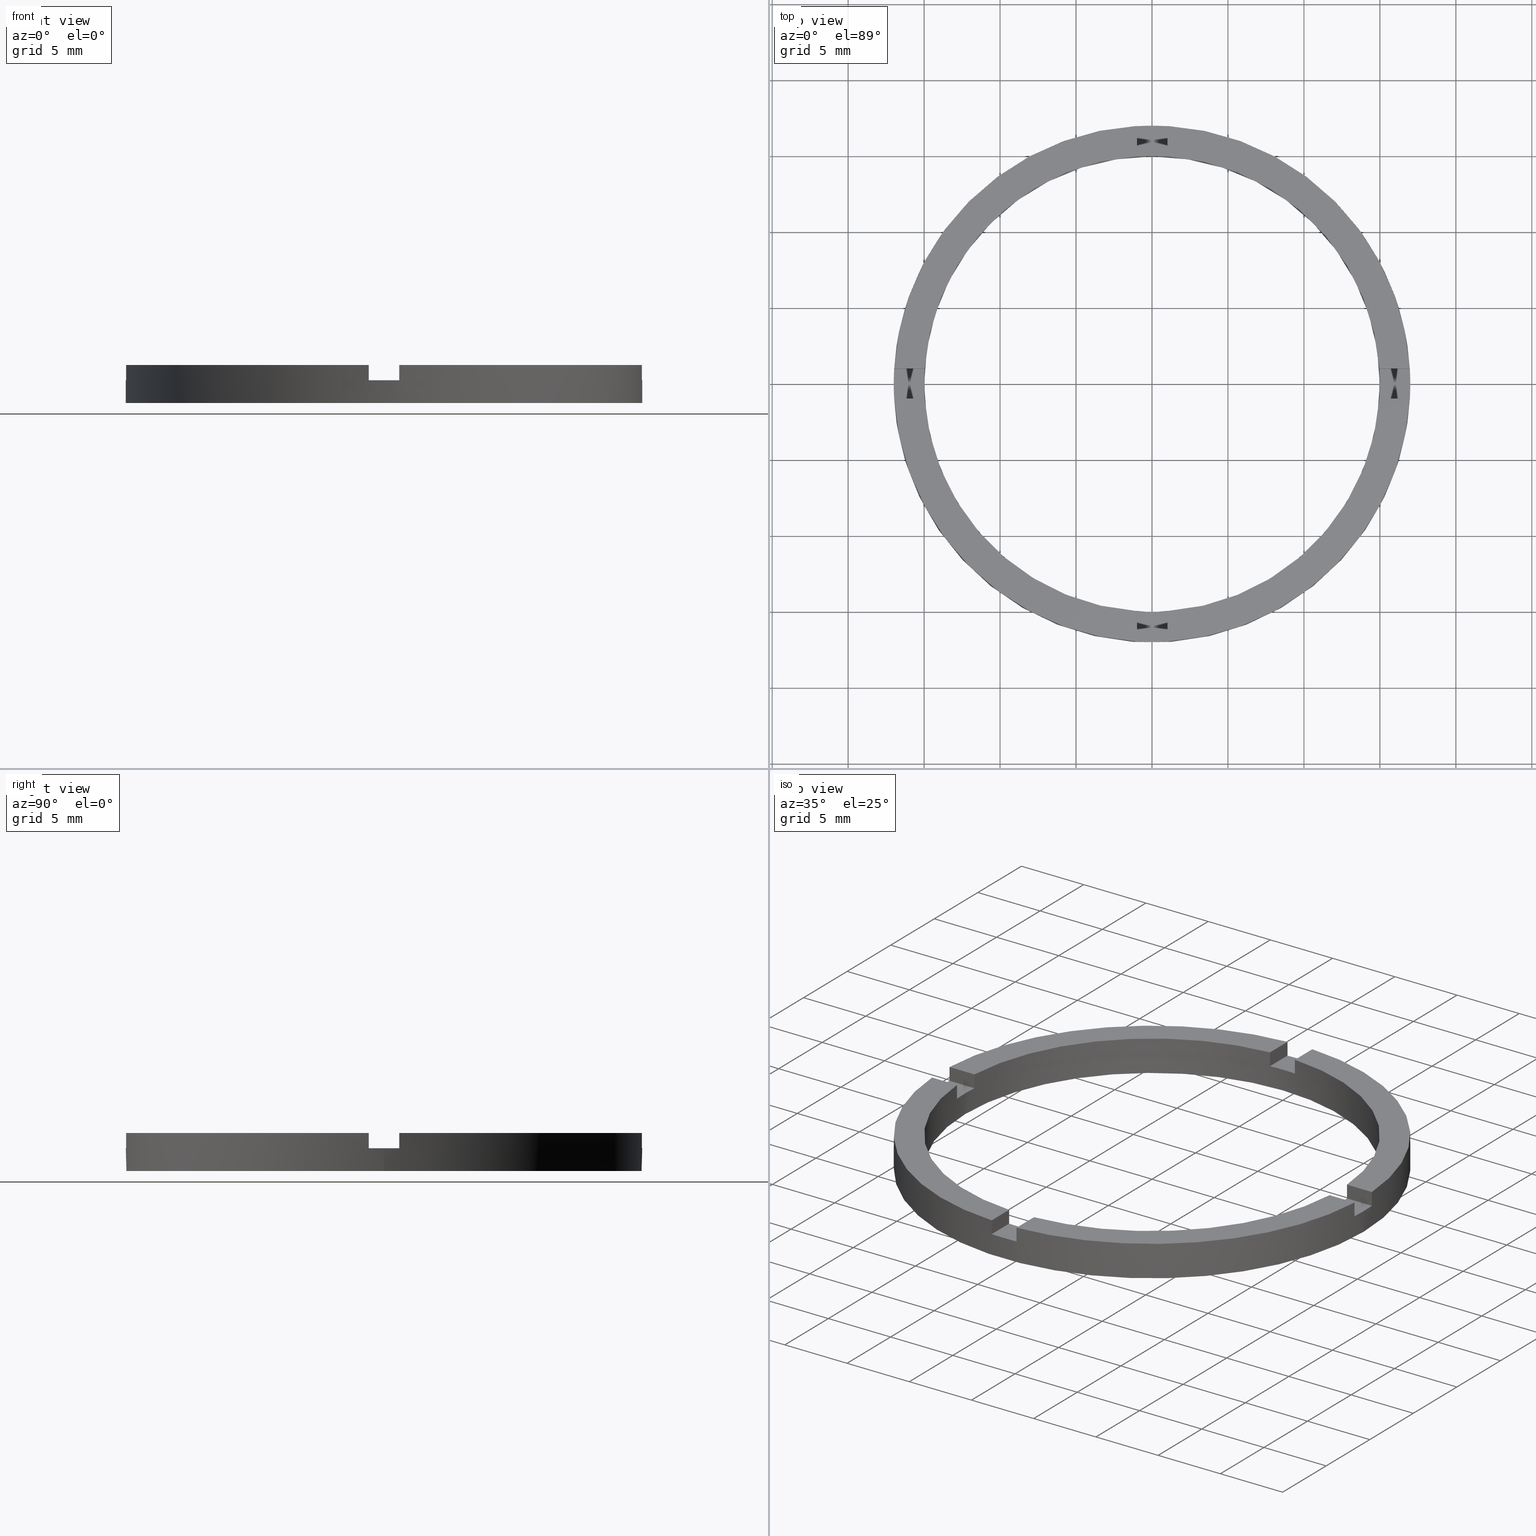
[diagram: canonical four-view strip — front | top / right | iso, engineering-drawing reading convention]
A machine part, canonical four-view strip (front | top / right | iso — engineering-drawing reading convention). The complete STEP part file that produces these views, byte-faithful:
ISO-10303-21;
HEADER;
FILE_DESCRIPTION (( 'STEP AP203' ),
    '1' );
FILE_NAME ('514074.step',
    '2024-12-26T02:35:04',
    ( 'MSI' ),
    ( '' ),
    'SwSTEP 2.0',
    'SolidWorks 2020',
    '' );
FILE_SCHEMA (( 'CONFIG_CONTROL_DESIGN' ));
ENDSEC;

DATA;
#1 = AXIS2_PLACEMENT_3D ( 'NONE', #31, #385, #692 ) ;
#2 = PLANE ( 'NONE',  #516 ) ;
#3 = DIRECTION ( 'NONE',  ( 1.000000000000000000, 0.000000000000000000, 0.000000000000000000 ) ) ;
#4 = ADVANCED_FACE ( 'NONE', ( #501 ), #644, .F. ) ;
#5 = CARTESIAN_POINT ( 'NONE',  ( 0.000000000000000000, 0.000000000000000000, 2.500000000000000000 ) ) ;
#6 = DIRECTION ( 'NONE',  ( 1.000000000000000000, 0.000000000000000000, 0.000000000000000000 ) ) ;
#7 = AXIS2_PLACEMENT_3D ( 'NONE', #656, #173, #465 ) ;
#8 = DIRECTION ( 'NONE',  ( -0.000000000000000000, -0.000000000000000000, -1.000000000000000000 ) ) ;
#9 = ADVANCED_FACE ( 'NONE', ( #507 ), #651, .F. ) ;
#10 = EDGE_CURVE ( 'NONE', #27, #23, #233, .T. ) ;
#11 = CARTESIAN_POINT ( 'NONE',  ( 0.000000000000000000, 0.000000000000000000, 1.500000000000000000 ) ) ;
#12 = DIRECTION ( 'NONE',  ( 1.000000000000000000, 0.000000000000000000, -0.000000000000000000 ) ) ;
#13 = DIRECTION ( 'NONE',  ( 0.000000000000000000, 0.000000000000000000, 1.000000000000000000 ) ) ;
#14 = VERTEX_POINT ( 'NONE', #340 ) ;
#15 = CARTESIAN_POINT ( 'NONE',  ( -1.000000000000162537, -16.97056274847713198, 1.500000000000000000 ) ) ;
#16 = VERTEX_POINT ( 'NONE', #727 ) ;
#17 = DIRECTION ( 'NONE',  ( -1.000000000000000000, 0.000000000000000000, 0.000000000000000000 ) ) ;
#18 = LOCAL_TIME ( 10, 35, 4.000000000000000000, #550 ) ;
#19 = ORIENTED_EDGE ( 'NONE', *, *, #105, .F. ) ;
#20 = VERTEX_POINT ( 'NONE', #601 ) ;
#21 = EDGE_CURVE ( 'NONE', #348, #373, #757, .T. ) ;
#22 = DATE_AND_TIME ( #272, #18 ) ;
#23 = VERTEX_POINT ( 'NONE', #723 ) ;
#24 = PRODUCT_RELATED_PRODUCT_CATEGORY ( 'detail', '', ( #633 ) ) ;
#25 = CARTESIAN_POINT ( 'NONE',  ( -17.00000000000000000, 0.000000000000000000, 0.000000000000000000 ) ) ;
#26 = PERSON_AND_ORGANIZATION ( #500, #546 ) ;
#27 = VERTEX_POINT ( 'NONE', #83 ) ;
#28 = APPROVAL_DATE_TIME ( #22, #552 ) ;
#29 = ORIENTED_EDGE ( 'NONE', *, *, #301, .F. ) ;
#30 = ORIENTED_EDGE ( 'NONE', *, *, #586, .T. ) ;
#31 = CARTESIAN_POINT ( 'NONE',  ( 0.000000000000000000, 0.000000000000000000, 1.500000000000000000 ) ) ;
#32 = AXIS2_PLACEMENT_3D ( 'NONE', #225, #332, #471 ) ;
#33 = ORIENTED_EDGE ( 'NONE', *, *, #375, .F. ) ;
#34 = DIRECTION ( 'NONE',  ( 0.000000000000000000, -0.000000000000000000, 1.000000000000000000 ) ) ;
#35 = APPLICATION_PROTOCOL_DEFINITION ( 'international standard', 'config_control_design', 1994, #722 ) ;
#36 = ORIENTED_EDGE ( 'NONE', *, *, #776, .T. ) ;
#37 = ORIENTED_EDGE ( 'NONE', *, *, #145, .T. ) ;
#38 = VERTEX_POINT ( 'NONE', #470 ) ;
#39 = CARTESIAN_POINT ( 'NONE',  ( 0.000000000000000000, 0.000000000000000000, 1.500000000000000000 ) ) ;
#40 = AXIS2_PLACEMENT_3D ( 'NONE', #664, #733, #3 ) ;
#41 = ORIENTED_EDGE ( 'NONE', *, *, #717, .T. ) ;
#42 = CARTESIAN_POINT ( 'NONE',  ( 0.000000000000000000, 0.000000000000000000, 1.500000000000000000 ) ) ;
#43 = ORIENTED_EDGE ( 'NONE', *, *, #208, .F. ) ;
#44 = VERTEX_POINT ( 'NONE', #529 ) ;
#45 = CARTESIAN_POINT ( 'NONE',  ( -1.000000000000025091, 16.97056274847713908, 2.500000000000000000 ) ) ;
#46 = ORIENTED_EDGE ( 'NONE', *, *, #749, .F. ) ;
#47 = CARTESIAN_POINT ( 'NONE',  ( -7.000000000000186517, -1.000000000000021982, 2.500000000000000000 ) ) ;
#48 = DIRECTION ( 'NONE',  ( 1.000000000000000000, 1.734723475976807341E-16, 0.000000000000000000 ) ) ;
#49 = ORIENTED_EDGE ( 'NONE', *, *, #234, .T. ) ;
#50 = PLANE ( 'NONE',  #386 ) ;
#51 = ORIENTED_EDGE ( 'NONE', *, *, #358, .T. ) ;
#52 = VERTEX_POINT ( 'NONE', #474 ) ;
#53 = PLANE ( 'NONE',  #319 ) ;
#54 = ORIENTED_EDGE ( 'NONE', *, *, #497, .F. ) ;
#55 = ORIENTED_EDGE ( 'NONE', *, *, #451, .T. ) ;
#56 = ORIENTED_EDGE ( 'NONE', *, *, #251, .F. ) ;
#57 = CC_DESIGN_APPROVAL ( #356, ( #255 ) ) ;
#58 = ORIENTED_EDGE ( 'NONE', *, *, #783, .F. ) ;
#59 = DIRECTION ( 'NONE',  ( 0.000000000000000000, 0.000000000000000000, 1.000000000000000000 ) ) ;
#60 = ORIENTED_EDGE ( 'NONE', *, *, #339, .T. ) ;
#61 = DIRECTION ( 'NONE',  ( 1.000000000000000000, 0.000000000000000000, 0.000000000000000000 ) ) ;
#62 = PERSON_AND_ORGANIZATION_ROLE ( 'design_supplier' ) ;
#63 = AXIS2_PLACEMENT_3D ( 'NONE', #521, #579, #531 ) ;
#64 = DIRECTION ( 'NONE',  ( 0.000000000000000000, 0.000000000000000000, 1.000000000000000000 ) ) ;
#65 = EDGE_CURVE ( 'NONE', #350, #294, #227, .T. ) ;
#66 = DIRECTION ( 'NONE',  ( 0.000000000000000000, 0.000000000000000000, 1.000000000000000000 ) ) ;
#67 = ADVANCED_FACE ( 'NONE', ( #504 ), #50, .T. ) ;
#68 = DIRECTION ( 'NONE',  ( -0.000000000000000000, -0.000000000000000000, -1.000000000000000000 ) ) ;
#69 = DIRECTION ( 'NONE',  ( -1.301042606982605321E-16, 1.000000000000000000, -0.000000000000000000 ) ) ;
#70 = ADVANCED_FACE ( 'NONE', ( #759 ), #427, .T. ) ;
#71 = CARTESIAN_POINT ( 'NONE',  ( -1.000000000000162537, -16.97056274847713198, 2.500000000000000000 ) ) ;
#72 = EDGE_CURVE ( 'NONE', #624, #268, #706, .T. ) ;
#73 = CARTESIAN_POINT ( 'NONE',  ( -7.000000000000186517, 0.9999999999999781286, 1.500000000000000000 ) ) ;
#74 = DIRECTION ( 'NONE',  ( -1.301042606982605321E-16, 1.000000000000000000, 0.000000000000000000 ) ) ;
#75 = CARTESIAN_POINT ( 'NONE',  ( 16.97056274847714974, 0.9999999999998411271, 2.500000000000000000 ) ) ;
#76 = DIRECTION ( 'NONE',  ( 1.000000000000000000, 4.336808689942018352E-17, 0.000000000000000000 ) ) ;
#77 = DIRECTION ( 'NONE',  ( 1.000000000000000000, 0.000000000000000000, 0.000000000000000000 ) ) ;
#78 = DIRECTION ( 'NONE',  ( -0.000000000000000000, -0.000000000000000000, -1.000000000000000000 ) ) ;
#79 = EDGE_CURVE ( 'NONE', #344, #235, #184, .T. ) ;
#80 = CARTESIAN_POINT ( 'NONE',  ( 0.9999999999999749090, 14.96662954709576709, 1.500000000000000000 ) ) ;
#81 = DIRECTION ( 'NONE',  ( -0.000000000000000000, -0.000000000000000000, -1.000000000000000000 ) ) ;
#82 = DIRECTION ( 'NONE',  ( 0.000000000000000000, 0.000000000000000000, 1.000000000000000000 ) ) ;
#83 = CARTESIAN_POINT ( 'NONE',  ( 0.9999999999998373523, -14.96662954709577775, 2.500000000000000000 ) ) ;
#84 = CARTESIAN_POINT ( 'NONE',  ( 0.9999999999998363531, -7.000000000000181188, 1.500000000000000000 ) ) ;
#85 = DIRECTION ( 'NONE',  ( 1.000000000000000000, 0.000000000000000000, 0.000000000000000000 ) ) ;
#86 = CARTESIAN_POINT ( 'NONE',  ( 0.000000000000000000, 0.000000000000000000, 0.000000000000000000 ) ) ;
#87 = VERTEX_POINT ( 'NONE', #623 ) ;
#88 = DIRECTION ( 'NONE',  ( -0.000000000000000000, 0.000000000000000000, 1.000000000000000000 ) ) ;
#89 = VERTEX_POINT ( 'NONE', #80 ) ;
#90 = AXIS2_PLACEMENT_3D ( 'NONE', #299, #113, #349 ) ;
#91 = ORIENTED_EDGE ( 'NONE', *, *, #256, .F. ) ;
#92 = ORIENTED_EDGE ( 'NONE', *, *, #514, .T. ) ;
#93 = ORIENTED_EDGE ( 'NONE', *, *, #665, .T. ) ;
#94 = CARTESIAN_POINT ( 'NONE',  ( 0.000000000000000000, 0.000000000000000000, 2.500000000000000000 ) ) ;
#95 = SECURITY_CLASSIFICATION_LEVEL ( 'unclassified' ) ;
#96 = ORIENTED_EDGE ( 'NONE', *, *, #514, .F. ) ;
#97 = ORIENTED_EDGE ( 'NONE', *, *, #660, .F. ) ;
#98 = VERTEX_POINT ( 'NONE', #75 ) ;
#99 = DIRECTION ( 'NONE',  ( 0.000000000000000000, -0.000000000000000000, 1.000000000000000000 ) ) ;
#100 = DIRECTION ( 'NONE',  ( 1.000000000000000000, 0.000000000000000000, 0.000000000000000000 ) ) ;
#101 = ORIENTED_EDGE ( 'NONE', *, *, #599, .F. ) ;
#102 = CARTESIAN_POINT ( 'NONE',  ( 6.999999999999995559, 0.9999999999998406830, 1.500000000000000000 ) ) ;
#103 = EDGE_LOOP ( 'NONE', ( #54, #303, #650, #676 ) ) ;
#104 = ORIENTED_EDGE ( 'NONE', *, *, #290, .T. ) ;
#105 = EDGE_CURVE ( 'NONE', #271, #611, #167, .T. ) ;
#106 = ORIENTED_EDGE ( 'NONE', *, *, #321, .T. ) ;
#107 = ORIENTED_EDGE ( 'NONE', *, *, #590, .F. ) ;
#108 = EDGE_CURVE ( 'NONE', #545, #645, #466, .T. ) ;
#109 = ORIENTED_EDGE ( 'NONE', *, *, #145, .F. ) ;
#110 = DIRECTION ( 'NONE',  ( -0.000000000000000000, -0.000000000000000000, -1.000000000000000000 ) ) ;
#111 = ORIENTED_EDGE ( 'NONE', *, *, #702, .F. ) ;
#112 = VERTEX_POINT ( 'NONE', #15 ) ;
#113 = DIRECTION ( 'NONE',  ( 0.000000000000000000, 0.000000000000000000, 1.000000000000000000 ) ) ;
#114 = ORIENTED_EDGE ( 'NONE', *, *, #118, .F. ) ;
#115 = ORIENTED_EDGE ( 'NONE', *, *, #490, .T. ) ;
#116 = CARTESIAN_POINT ( 'NONE',  ( 0.9999999999999749090, 7.000000000000000888, 2.500000000000000000 ) ) ;
#117 = ORIENTED_EDGE ( 'NONE', *, *, #157, .T. ) ;
#118 = EDGE_CURVE ( 'NONE', #618, #344, #193, .T. ) ;
#119 = PRODUCT_DEFINITION_SHAPE ( 'NONE', 'NONE',  #658 ) ;
#120 = ORIENTED_EDGE ( 'NONE', *, *, #358, .F. ) ;
#121 = ADVANCED_FACE ( 'NONE', ( #159, #176 ), #766, .F. ) ;
#122 = ORIENTED_EDGE ( 'NONE', *, *, #361, .F. ) ;
#123 = ORIENTED_EDGE ( 'NONE', *, *, #749, .T. ) ;
#124 = ORIENTED_EDGE ( 'NONE', *, *, #108, .F. ) ;
#125 = CARTESIAN_POINT ( 'NONE',  ( -14.96662954709576709, 0.9999999999999767963, 2.500000000000000000 ) ) ;
#126 = ADVANCED_FACE ( 'NONE', ( #440 ), #259, .T. ) ;
#127 = CARTESIAN_POINT ( 'NONE',  ( -16.97056274847713908, -1.000000000000023759, 2.500000000000000000 ) ) ;
#128 = DIRECTION ( 'NONE',  ( 1.000000000000000000, 0.000000000000000000, 0.000000000000000000 ) ) ;
#129 = DIRECTION ( 'NONE',  ( -0.000000000000000000, -0.000000000000000000, -1.000000000000000000 ) ) ;
#130 = CARTESIAN_POINT ( 'NONE',  ( -14.96662954709576709, 0.9999999999999767963, 2.500000000000000000 ) ) ;
#131 = CARTESIAN_POINT ( 'NONE',  ( 14.96662954709577775, 0.9999999999998411271, 1.500000000000000000 ) ) ;
#132 = CARTESIAN_POINT ( 'NONE',  ( 17.00000000000000000, 2.081899558550500280E-15, 2.500000000000000000 ) ) ;
#133 = EDGE_CURVE ( 'NONE', #454, #648, #721, .T. ) ;
#134 = LINE ( 'NONE', #480, #685 ) ;
#135 = VECTOR ( 'NONE', #370, 1000.000000000000000 ) ;
#136 = DIRECTION ( 'NONE',  ( 1.000000000000000000, 0.000000000000000000, 0.000000000000000000 ) ) ;
#137 = VECTOR ( 'NONE', #154, 1000.000000000000000 ) ;
#138 = AXIS2_PLACEMENT_3D ( 'NONE', #710, #700, #608 ) ;
#139 = PLANE ( 'NONE',  #669 ) ;
#140 = PERSON_AND_ORGANIZATION_ROLE ( 'creator' ) ;
#141 = CYLINDRICAL_SURFACE ( 'NONE', #423, 17.00000000000000000 ) ;
#142 = CARTESIAN_POINT ( 'NONE',  ( 0.9999999999998373523, -14.96662954709577775, 1.500000000000000000 ) ) ;
#143 = UNCERTAINTY_MEASURE_WITH_UNIT (LENGTH_MEASURE( 1.000000000000000082E-05 ), #524, 'distance_accuracy_value', 'NONE');
#144 = LINE ( 'NONE', #513, #171 ) ;
#145 = EDGE_CURVE ( 'NONE', #574, #369, #701, .T. ) ;
#146 = VECTOR ( 'NONE', #328, 1000.000000000000000 ) ;
#147 = CARTESIAN_POINT ( 'NONE',  ( -16.97056274847714263, 0.9999999999999763522, 1.500000000000000000 ) ) ;
#148 = VERTEX_POINT ( 'NONE', #45 ) ;
#149 = ORIENTED_EDGE ( 'NONE', *, *, #65, .T. ) ;
#150 = CIRCLE ( 'NONE', #213, 15.00000000000000000 ) ;
#151 = ORIENTED_EDGE ( 'NONE', *, *, #599, .T. ) ;
#152 = LINE ( 'NONE', #625, #409 ) ;
#153 = CARTESIAN_POINT ( 'NONE',  ( -14.96662954709576354, -1.000000000000023315, 1.500000000000000000 ) ) ;
#154 = DIRECTION ( 'NONE',  ( 1.000000000000000000, 1.734723475976807341E-16, -0.000000000000000000 ) ) ;
#155 = APPROVAL_STATUS ( 'not_yet_approved' ) ;
#156 = FACE_OUTER_BOUND ( 'NONE', #295, .T. ) ;
#157 = EDGE_CURVE ( 'NONE', #613, #16, #724, .T. ) ;
#158 = FACE_OUTER_BOUND ( 'NONE', #630, .T. ) ;
#159 = FACE_OUTER_BOUND ( 'NONE', #556, .T. ) ;
#160 = VECTOR ( 'NONE', #535, 1000.000000000000000 ) ;
#161 = LINE ( 'NONE', #725, #182 ) ;
#162 = ORIENTED_EDGE ( 'NONE', *, *, #118, .T. ) ;
#163 = CIRCLE ( 'NONE', #7, 17.00000000000000000 ) ;
#164 = CARTESIAN_POINT ( 'NONE',  ( 0.000000000000000000, 0.000000000000000000, 0.000000000000000000 ) ) ;
#165 = VERTEX_POINT ( 'NONE', #153 ) ;
#166 = FACE_OUTER_BOUND ( 'NONE', #622, .T. ) ;
#167 = LINE ( 'NONE', #209, #719 ) ;
#168 = ORIENTED_EDGE ( 'NONE', *, *, #79, .T. ) ;
#169 = LINE ( 'NONE', #261, #146 ) ;
#170 = ORIENTED_EDGE ( 'NONE', *, *, #393, .T. ) ;
#171 = VECTOR ( 'NONE', #76, 1000.000000000000000 ) ;
#172 = VECTOR ( 'NONE', #250, 1000.000000000000000 ) ;
#173 = DIRECTION ( 'NONE',  ( 0.000000000000000000, 0.000000000000000000, 1.000000000000000000 ) ) ;
#174 = ORIENTED_EDGE ( 'NONE', *, *, #731, .F. ) ;
#175 = VECTOR ( 'NONE', #544, 1000.000000000000000 ) ;
#176 = FACE_BOUND ( 'NONE', #438, .T. ) ;
#177 = ORIENTED_EDGE ( 'NONE', *, *, #290, .F. ) ;
#178 = LINE ( 'NONE', #190, #175 ) ;
#179 = LINE ( 'NONE', #73, #195 ) ;
#180 = FACE_OUTER_BOUND ( 'NONE', #578, .T. ) ;
#181 = DIRECTION ( 'NONE',  ( -1.000000000000000000, -4.336808689942018352E-17, -0.000000000000000000 ) ) ;
#182 = VECTOR ( 'NONE', #8, 1000.000000000000000 ) ;
#183 = LINE ( 'NONE', #734, #455 ) ;
#184 = CIRCLE ( 'NONE', #1, 17.00000000000000000 ) ;
#185 = LINE ( 'NONE', #506, #708 ) ;
#186 = AXIS2_PLACEMENT_3D ( 'NONE', #588, #522, #249 ) ;
#187 = VECTOR ( 'NONE', #548, 1000.000000000000000 ) ;
#188 = ORIENTED_EDGE ( 'NONE', *, *, #586, .F. ) ;
#189 = CIRCLE ( 'NONE', #285, 17.00000000000000000 ) ;
#190 = CARTESIAN_POINT ( 'NONE',  ( -1.000000000000163647, -7.000000000000181188, 2.500000000000000000 ) ) ;
#191 = CARTESIAN_POINT ( 'NONE',  ( 0.000000000000000000, 0.000000000000000000, 1.500000000000000000 ) ) ;
#192 = ADVANCED_FACE ( 'NONE', ( #434 ), #53, .T. ) ;
#193 = CIRCLE ( 'NONE', #654, 17.00000000000000000 ) ;
#194 = DIRECTION ( 'NONE',  ( 1.000000000000000000, 0.000000000000000000, -0.000000000000000000 ) ) ;
#195 = VECTOR ( 'NONE', #449, 1000.000000000000000 ) ;
#196 = DIRECTION ( 'NONE',  ( 0.000000000000000000, 1.000000000000000000, 0.000000000000000000 ) ) ;
#197 = LINE ( 'NONE', #127, #687 ) ;
#198 = CIRCLE ( 'NONE', #677, 15.00000000000000000 ) ;
#199 =( GEOMETRIC_REPRESENTATION_CONTEXT ( 3 ) GLOBAL_UNCERTAINTY_ASSIGNED_CONTEXT ( ( #143 ) ) GLOBAL_UNIT_ASSIGNED_CONTEXT ( ( #524, #469, #238 ) ) REPRESENTATION_CONTEXT ( 'NONE', 'WORKASPACE' ) );
#200 = ADVANCED_FACE ( 'NONE', ( #447 ), #591, .T. ) ;
#201 = EDGE_CURVE ( 'NONE', #563, #618, #179, .T. ) ;
#202 = FACE_OUTER_BOUND ( 'NONE', #432, .T. ) ;
#203 = CARTESIAN_POINT ( 'NONE',  ( -7.000000000000186517, 0.9999999999999781286, 2.500000000000000000 ) ) ;
#204 = CARTESIAN_POINT ( 'NONE',  ( 0.000000000000000000, 0.000000000000000000, 2.500000000000000000 ) ) ;
#205 = AXIS2_PLACEMENT_3D ( 'NONE', #597, #88, #392 ) ;
#206 = CYLINDRICAL_SURFACE ( 'NONE', #239, 15.00000000000000000 ) ;
#207 = CARTESIAN_POINT ( 'NONE',  ( -1.000000000000025091, 14.96662954709576354, 2.500000000000000000 ) ) ;
#208 = EDGE_CURVE ( 'NONE', #563, #346, #463, .T. ) ;
#209 = CARTESIAN_POINT ( 'NONE',  ( 14.96662954709577775, 0.9999999999998411271, 2.500000000000000000 ) ) ;
#210 = CYLINDRICAL_SURFACE ( 'NONE', #530, 17.00000000000000000 ) ;
#211 = CARTESIAN_POINT ( 'NONE',  ( 0.9999999999999749090, 16.97056274847714263, 1.500000000000000000 ) ) ;
#212 = DIRECTION ( 'NONE',  ( -0.000000000000000000, -0.000000000000000000, -1.000000000000000000 ) ) ;
#213 = AXIS2_PLACEMENT_3D ( 'NONE', #11, #254, #77 ) ;
#214 = FACE_OUTER_BOUND ( 'NONE', #355, .T. ) ;
#215 = CIRCLE ( 'NONE', #568, 15.00000000000000000 ) ;
#216 = DIRECTION ( 'NONE',  ( 4.336808689942018352E-17, -1.000000000000000000, 0.000000000000000000 ) ) ;
#217 = APPROVAL_STATUS ( 'not_yet_approved' ) ;
#218 = LINE ( 'NONE', #539, #743 ) ;
#219 = LINE ( 'NONE', #262, #482 ) ;
#220 = AXIS2_PLACEMENT_3D ( 'NONE', #204, #365, #746 ) ;
#221 = DIRECTION ( 'NONE',  ( 0.000000000000000000, 0.000000000000000000, 1.000000000000000000 ) ) ;
#222 = LOCAL_TIME ( 10, 35, 4.000000000000000000, #495 ) ;
#223 = ORIENTED_EDGE ( 'NONE', *, *, #251, .T. ) ;
#224 = CALENDAR_DATE ( 2024, 26, 12 ) ;
#225 = CARTESIAN_POINT ( 'NONE',  ( 0.000000000000000000, 0.000000000000000000, 2.500000000000000000 ) ) ;
#226 = DATE_AND_TIME ( #756, #492 ) ;
#227 = CIRCLE ( 'NONE', #726, 17.00000000000000000 ) ;
#228 = DIRECTION ( 'NONE',  ( 0.000000000000000000, 0.000000000000000000, 1.000000000000000000 ) ) ;
#229 = APPROVAL_STATUS ( 'not_yet_approved' ) ;
#230 = CC_DESIGN_PERSON_AND_ORGANIZATION_ASSIGNMENT ( #562, #532, ( #633 ) ) ;
#231 = DATE_AND_TIME ( #240, #508 ) ;
#232 = DATE_AND_TIME ( #775, #222 ) ;
#233 = CIRCLE ( 'NONE', #281, 15.00000000000000000 ) ;
#234 = EDGE_CURVE ( 'NONE', #624, #235, #197, .T. ) ;
#235 = VERTEX_POINT ( 'NONE', #338 ) ;
#236 = CC_DESIGN_DATE_AND_TIME_ASSIGNMENT ( #520, #337, ( #405 ) ) ;
#237 = DIRECTION ( 'NONE',  ( 1.000000000000000000, 0.000000000000000000, -0.000000000000000000 ) ) ;
#238 =( NAMED_UNIT ( * ) SI_UNIT ( $, .STERADIAN. ) SOLID_ANGLE_UNIT ( ) );
#239 = AXIS2_PLACEMENT_3D ( 'NONE', #647, #394, #477 ) ;
#240 = CALENDAR_DATE ( 2024, 26, 12 ) ;
#241 = CARTESIAN_POINT ( 'NONE',  ( -1.000000000000025091, 14.96662954709576354, 2.500000000000000000 ) ) ;
#242 = CARTESIAN_POINT ( 'NONE',  ( 0.000000000000000000, 0.000000000000000000, 1.500000000000000000 ) ) ;
#243 = PERSON_AND_ORGANIZATION ( #500, #546 ) ;
#244 = PERSON_AND_ORGANIZATION ( #500, #546 ) ;
#245 = CARTESIAN_POINT ( 'NONE',  ( 14.96662954709575466, -1.000000000000158984, 2.500000000000000000 ) ) ;
#246 = DIRECTION ( 'NONE',  ( 0.000000000000000000, 0.000000000000000000, 1.000000000000000000 ) ) ;
#247 = EDGE_CURVE ( 'NONE', #425, #165, #198, .T. ) ;
#248 = ADVANCED_FACE ( 'NONE', ( #450 ), #2, .T. ) ;
#249 = DIRECTION ( 'NONE',  ( 1.000000000000000000, 0.000000000000000000, -0.000000000000000000 ) ) ;
#250 = DIRECTION ( 'NONE',  ( 1.000000000000000000, 4.336808689942018352E-17, 0.000000000000000000 ) ) ;
#251 = EDGE_CURVE ( 'NONE', #14, #38, #161, .T. ) ;
#252 = DIRECTION ( 'NONE',  ( -0.000000000000000000, -0.000000000000000000, -1.000000000000000000 ) ) ;
#253 = EDGE_CURVE ( 'NONE', #563, #425, #690, .T. ) ;
#254 = DIRECTION ( 'NONE',  ( -0.000000000000000000, 0.000000000000000000, 1.000000000000000000 ) ) ;
#255 = PRODUCT_DEFINITION_FORMATION_WITH_SPECIFIED_SOURCE ( '�κ�', '', #633, .NOT_KNOWN. ) ;
#256 = EDGE_CURVE ( 'NONE', #89, #44, #453, .T. ) ;
#257 = DIRECTION ( 'NONE',  ( -1.000000000000000000, -1.734723475976807341E-16, 0.000000000000000000 ) ) ;
#258 = EDGE_CURVE ( 'NONE', #645, #545, #431, .T. ) ;
#259 = PLANE ( 'NONE',  #728 ) ;
#260 = CARTESIAN_POINT ( 'NONE',  ( 16.97056274847713198, -1.000000000000158984, 2.500000000000000000 ) ) ;
#261 = CARTESIAN_POINT ( 'NONE',  ( -16.97056274847714263, 0.9999999999999763522, 2.500000000000000000 ) ) ;
#262 = CARTESIAN_POINT ( 'NONE',  ( -14.96662954709576354, -1.000000000000023315, 2.500000000000000000 ) ) ;
#263 = DIRECTION ( 'NONE',  ( -1.000000000000000000, -1.734723475976807341E-16, 0.000000000000000000 ) ) ;
#264 = DIRECTION ( 'NONE',  ( 0.000000000000000000, 0.000000000000000000, 1.000000000000000000 ) ) ;
#265 = DIRECTION ( 'NONE',  ( -1.000000000000000000, -1.301042606982605321E-16, 0.000000000000000000 ) ) ;
#266 = ADVANCED_BREP_SHAPE_REPRESENTATION ( '514074', ( #763, #399 ), #199 ) ;
#267 = DIRECTION ( 'NONE',  ( 0.000000000000000000, 0.000000000000000000, 1.000000000000000000 ) ) ;
#268 = VERTEX_POINT ( 'NONE', #661 ) ;
#269 = ORIENTED_EDGE ( 'NONE', *, *, #616, .F. ) ;
#270 = DIRECTION ( 'NONE',  ( 1.000000000000000000, 0.000000000000000000, 0.000000000000000000 ) ) ;
#271 = VERTEX_POINT ( 'NONE', #729 ) ;
#272 = CALENDAR_DATE ( 2024, 26, 12 ) ;
#273 = ORIENTED_EDGE ( 'NONE', *, *, #503, .F. ) ;
#274 = DIRECTION ( 'NONE',  ( -0.000000000000000000, -1.000000000000000000, -0.000000000000000000 ) ) ;
#275 = ORIENTED_EDGE ( 'NONE', *, *, #717, .F. ) ;
#276 = EDGE_LOOP ( 'NONE', ( #298, #60, #111, #629 ) ) ;
#277 = APPROVAL_PERSON_ORGANIZATION ( #26, #552, #649 ) ;
#278 = ORIENTED_EDGE ( 'NONE', *, *, #301, .T. ) ;
#279 = ORIENTED_EDGE ( 'NONE', *, *, #451, .F. ) ;
#280 = DIRECTION ( 'NONE',  ( -0.000000000000000000, -1.000000000000000000, -0.000000000000000000 ) ) ;
#281 = AXIS2_PLACEMENT_3D ( 'NONE', #483, #536, #85 ) ;
#282 = VERTEX_POINT ( 'NONE', #241 ) ;
#283 = VERTEX_POINT ( 'NONE', #343 ) ;
#284 = DIRECTION ( 'NONE',  ( 1.000000000000000000, 0.000000000000000000, 0.000000000000000000 ) ) ;
#285 = AXIS2_PLACEMENT_3D ( 'NONE', #770, #267, #329 ) ;
#286 = ORIENTED_EDGE ( 'NONE', *, *, #10, .T. ) ;
#287 = ORIENTED_EDGE ( 'NONE', *, *, #771, .T. ) ;
#288 = ORIENTED_EDGE ( 'NONE', *, *, #339, .F. ) ;
#289 = DIRECTION ( 'NONE',  ( -1.000000000000000000, -4.336808689942018352E-17, 0.000000000000000000 ) ) ;
#290 = EDGE_CURVE ( 'NONE', #648, #611, #712, .T. ) ;
#291 = VERTEX_POINT ( 'NONE', #422 ) ;
#292 = EDGE_CURVE ( 'NONE', #38, #310, #457, .T. ) ;
#293 = ORIENTED_EDGE ( 'NONE', *, *, #258, .F. ) ;
#294 = VERTEX_POINT ( 'NONE', #603 ) ;
#295 = EDGE_LOOP ( 'NONE', ( #269, #384, #494, #652 ) ) ;
#296 = ORIENTED_EDGE ( 'NONE', *, *, #696, .T. ) ;
#297 = ORIENTED_EDGE ( 'NONE', *, *, #108, .T. ) ;
#298 = ORIENTED_EDGE ( 'NONE', *, *, #730, .T. ) ;
#299 = CARTESIAN_POINT ( 'NONE',  ( 0.000000000000000000, 0.000000000000000000, 1.500000000000000000 ) ) ;
#300 = ADVANCED_FACE ( 'NONE', ( #714 ), #333, .F. ) ;
#301 = EDGE_CURVE ( 'NONE', #148, #87, #189, .T. ) ;
#302 = ORIENTED_EDGE ( 'NONE', *, *, #391, .F. ) ;
#303 = ORIENTED_EDGE ( 'NONE', *, *, #325, .F. ) ;
#304 = DIRECTION ( 'NONE',  ( 0.000000000000000000, 0.000000000000000000, 1.000000000000000000 ) ) ;
#305 = CC_DESIGN_PERSON_AND_ORGANIZATION_ASSIGNMENT ( #519, #62, ( #255 ) ) ;
#306 = ORIENTED_EDGE ( 'NONE', *, *, #253, .F. ) ;
#307 = DIRECTION ( 'NONE',  ( 1.000000000000000000, 0.000000000000000000, 0.000000000000000000 ) ) ;
#308 = ORIENTED_EDGE ( 'NONE', *, *, #208, .T. ) ;
#309 = ADVANCED_FACE ( 'NONE', ( #460 ), #462, .T. ) ;
#310 = VERTEX_POINT ( 'NONE', #142 ) ;
#311 = AXIS2_PLACEMENT_3D ( 'NONE', #626, #317, #699 ) ;
#312 = CARTESIAN_POINT ( 'NONE',  ( 0.000000000000000000, 0.000000000000000000, 2.500000000000000000 ) ) ;
#313 = DIRECTION ( 'NONE',  ( 0.000000000000000000, 0.000000000000000000, 1.000000000000000000 ) ) ;
#314 = DIRECTION ( 'NONE',  ( 0.000000000000000000, 0.000000000000000000, 1.000000000000000000 ) ) ;
#315 = CARTESIAN_POINT ( 'NONE',  ( 0.000000000000000000, 0.000000000000000000, 2.500000000000000000 ) ) ;
#316 = CARTESIAN_POINT ( 'NONE',  ( 0.9999999999999749090, 7.000000000000000888, 1.500000000000000000 ) ) ;
#317 = DIRECTION ( 'NONE',  ( 0.000000000000000000, 0.000000000000000000, 1.000000000000000000 ) ) ;
#318 = CARTESIAN_POINT ( 'NONE',  ( 0.000000000000000000, 0.000000000000000000, 2.500000000000000000 ) ) ;
#319 = AXIS2_PLACEMENT_3D ( 'NONE', #395, #533, #478 ) ;
#320 = CC_DESIGN_APPROVAL ( #552, ( #658 ) ) ;
#321 = EDGE_CURVE ( 'NONE', #283, #350, #467, .T. ) ;
#322 = CARTESIAN_POINT ( 'NONE',  ( 0.000000000000000000, 0.000000000000000000, 2.500000000000000000 ) ) ;
#323 = DIRECTION ( 'NONE',  ( -1.000000000000000000, 0.000000000000000000, 0.000000000000000000 ) ) ;
#324 = CARTESIAN_POINT ( 'NONE',  ( 0.000000000000000000, 0.000000000000000000, 2.500000000000000000 ) ) ;
#325 = EDGE_CURVE ( 'NONE', #271, #291, #473, .T. ) ;
#326 = DIRECTION ( 'NONE',  ( -0.000000000000000000, 0.000000000000000000, 1.000000000000000000 ) ) ;
#327 = PLANE ( 'NONE',  #628 ) ;
#328 = DIRECTION ( 'NONE',  ( 0.000000000000000000, 0.000000000000000000, 1.000000000000000000 ) ) ;
#329 = DIRECTION ( 'NONE',  ( 1.000000000000000000, 0.000000000000000000, 0.000000000000000000 ) ) ;
#330 = DIRECTION ( 'NONE',  ( 1.000000000000000000, 0.000000000000000000, 0.000000000000000000 ) ) ;
#331 = EDGE_CURVE ( 'NONE', #112, #268, #486, .T. ) ;
#332 = DIRECTION ( 'NONE',  ( -0.000000000000000000, -0.000000000000000000, -1.000000000000000000 ) ) ;
#333 = PLANE ( 'NONE',  #485 ) ;
#334 = DIRECTION ( 'NONE',  ( -4.336808689942018352E-17, 1.000000000000000000, 0.000000000000000000 ) ) ;
#335 = CC_DESIGN_SECURITY_CLASSIFICATION ( #405, ( #255 ) ) ;
#336 = CARTESIAN_POINT ( 'NONE',  ( 0.9999999999999749090, 16.97056274847714263, 2.500000000000000000 ) ) ;
#337 = DATE_TIME_ROLE ( 'classification_date' ) ;
#338 = CARTESIAN_POINT ( 'NONE',  ( -16.97056274847713908, -1.000000000000023759, 1.500000000000000000 ) ) ;
#339 = EDGE_CURVE ( 'NONE', #348, #165, #219, .T. ) ;
#340 = CARTESIAN_POINT ( 'NONE',  ( 0.9999999999998375744, -16.97056274847715329, 2.500000000000000000 ) ) ;
#341 = AXIS2_PLACEMENT_3D ( 'NONE', #607, #314, #374 ) ;
#342 = ORIENTED_EDGE ( 'NONE', *, *, #660, .T. ) ;
#343 = CARTESIAN_POINT ( 'NONE',  ( 16.97056274847713198, -1.000000000000158984, 1.500000000000000000 ) ) ;
#344 = VERTEX_POINT ( 'NONE', #612 ) ;
#345 = DIRECTION ( 'NONE',  ( 1.000000000000000000, 0.000000000000000000, -0.000000000000000000 ) ) ;
#346 = VERTEX_POINT ( 'NONE', #130 ) ;
#347 = ORIENTED_EDGE ( 'NONE', *, *, #739, .F. ) ;
#348 = VERTEX_POINT ( 'NONE', #619 ) ;
#349 = DIRECTION ( 'NONE',  ( 1.000000000000000000, 0.000000000000000000, 0.000000000000000000 ) ) ;
#350 = VERTEX_POINT ( 'NONE', #752 ) ;
#351 = ORIENTED_EDGE ( 'NONE', *, *, #258, .T. ) ;
#352 = ADVANCED_FACE ( 'NONE', ( #214 ), #210, .T. ) ;
#353 = EDGE_LOOP ( 'NONE', ( #106, #149, #636, #177, #615, #30 ) ) ;
#354 = DIRECTION ( 'NONE',  ( -0.000000000000000000, -0.000000000000000000, -1.000000000000000000 ) ) ;
#355 = EDGE_LOOP ( 'NONE', ( #541, #51, #351, #551, #114, #655, #29, #296, #587, #37, #122, #93 ) ) ;
#356 = APPROVAL ( #217, 'δָ��' ) ;
#357 = ORIENTED_EDGE ( 'NONE', *, *, #554, .F. ) ;
#358 = EDGE_CURVE ( 'NONE', #350, #645, #744, .T. ) ;
#359 = ORIENTED_EDGE ( 'NONE', *, *, #404, .T. ) ;
#360 = ORIENTED_EDGE ( 'NONE', *, *, #665, .F. ) ;
#361 = EDGE_CURVE ( 'NONE', #98, #369, #732, .T. ) ;
#362 = DIRECTION ( 'NONE',  ( -0.000000000000000000, -0.000000000000000000, -1.000000000000000000 ) ) ;
#363 = ADVANCED_FACE ( 'NONE', ( #202 ), #206, .F. ) ;
#364 = ORIENTED_EDGE ( 'NONE', *, *, #391, .T. ) ;
#365 = DIRECTION ( 'NONE',  ( 0.000000000000000000, 0.000000000000000000, 1.000000000000000000 ) ) ;
#366 = ORIENTED_EDGE ( 'NONE', *, *, #731, .T. ) ;
#367 = ORIENTED_EDGE ( 'NONE', *, *, #21, .T. ) ;
#368 = AXIS2_PLACEMENT_3D ( 'NONE', #709, #216, #584 ) ;
#369 = VERTEX_POINT ( 'NONE', #336 ) ;
#370 = DIRECTION ( 'NONE',  ( 0.000000000000000000, 1.000000000000000000, 0.000000000000000000 ) ) ;
#371 = ORIENTED_EDGE ( 'NONE', *, *, #393, .F. ) ;
#372 = ORIENTED_EDGE ( 'NONE', *, *, #592, .T. ) ;
#373 = VERTEX_POINT ( 'NONE', #400 ) ;
#374 = DIRECTION ( 'NONE',  ( 1.000000000000000000, 0.000000000000000000, 0.000000000000000000 ) ) ;
#375 = EDGE_CURVE ( 'NONE', #294, #611, #476, .T. ) ;
#376 = ORIENTED_EDGE ( 'NONE', *, *, #201, .T. ) ;
#377 = ORIENTED_EDGE ( 'NONE', *, *, #157, .F. ) ;
#378 = ORIENTED_EDGE ( 'NONE', *, *, #592, .F. ) ;
#379 = ORIENTED_EDGE ( 'NONE', *, *, #331, .T. ) ;
#380 = AXIS2_PLACEMENT_3D ( 'NONE', #387, #228, #270 ) ;
#381 = CARTESIAN_POINT ( 'NONE',  ( -1.000000000000163647, -7.000000000000181188, 1.500000000000000000 ) ) ;
#382 = DIRECTION ( 'NONE',  ( 1.301042606982605321E-16, -1.000000000000000000, 0.000000000000000000 ) ) ;
#383 = EDGE_LOOP ( 'NONE', ( #582, #115, #435, #56 ) ) ;
#384 = ORIENTED_EDGE ( 'NONE', *, *, #10, .F. ) ;
#385 = DIRECTION ( 'NONE',  ( 0.000000000000000000, 0.000000000000000000, 1.000000000000000000 ) ) ;
#386 = AXIS2_PLACEMENT_3D ( 'NONE', #782, #66, #194 ) ;
#387 = CARTESIAN_POINT ( 'NONE',  ( 0.000000000000000000, 0.000000000000000000, 2.500000000000000000 ) ) ;
#388 = DIRECTION ( 'NONE',  ( 1.000000000000000000, 0.000000000000000000, 0.000000000000000000 ) ) ;
#389 = AXIS2_PLACEMENT_3D ( 'NONE', #86, #720, #330 ) ;
#390 = CARTESIAN_POINT ( 'NONE',  ( 0.000000000000000000, 0.000000000000000000, 0.000000000000000000 ) ) ;
#391 = EDGE_CURVE ( 'NONE', #282, #346, #215, .T. ) ;
#392 = DIRECTION ( 'NONE',  ( 1.000000000000000000, 0.000000000000000000, 0.000000000000000000 ) ) ;
#393 = EDGE_CURVE ( 'NONE', #52, #373, #735, .T. ) ;
#394 = DIRECTION ( 'NONE',  ( -0.000000000000000000, -0.000000000000000000, -1.000000000000000000 ) ) ;
#395 = CARTESIAN_POINT ( 'NONE',  ( 0.000000000000000000, 0.000000000000000000, 1.500000000000000000 ) ) ;
#396 = CARTESIAN_POINT ( 'NONE',  ( 15.00000000000000000, 1.836970198721029589E-15, 2.500000000000000000 ) ) ;
#397 = APPLICATION_CONTEXT ( 'configuration controlled 3d designs of mechanical parts and assemblies' ) ;
#398 = FACE_OUTER_BOUND ( 'NONE', #549, .T. ) ;
#399 = AXIS2_PLACEMENT_3D ( 'NONE', #765, #82, #100 ) ;
#400 = CARTESIAN_POINT ( 'NONE',  ( -1.000000000000162759, -14.96662954709575466, 2.500000000000000000 ) ) ;
#401 = FACE_OUTER_BOUND ( 'NONE', #383, .T. ) ;
#402 = APPROVAL_ROLE ( '' ) ;
#403 = LINE ( 'NONE', #381, #419 ) ;
#404 = EDGE_CURVE ( 'NONE', #425, #613, #218, .T. ) ;
#405 = SECURITY_CLASSIFICATION ( '', '', #95 ) ;
#406 = LINE ( 'NONE', #481, #693 ) ;
#407 = CARTESIAN_POINT ( 'NONE',  ( -1.000000000000162759, -14.96662954709575466, 2.500000000000000000 ) ) ;
#408 = LINE ( 'NONE', #681, #674 ) ;
#409 = VECTOR ( 'NONE', #264, 1000.000000000000000 ) ;
#410 = CARTESIAN_POINT ( 'NONE',  ( 0.000000000000000000, 0.000000000000000000, 1.500000000000000000 ) ) ;
#411 = VECTOR ( 'NONE', #527, 1000.000000000000000 ) ;
#412 = ORIENTED_EDGE ( 'NONE', *, *, #404, .F. ) ;
#413 = EDGE_LOOP ( 'NONE', ( #41, #583, #357, #92 ) ) ;
#414 = VECTOR ( 'NONE', #129, 1000.000000000000000 ) ;
#415 = ORIENTED_EDGE ( 'NONE', *, *, #497, .T. ) ;
#416 = VECTOR ( 'NONE', #257, 1000.000000000000000 ) ;
#417 = FACE_OUTER_BOUND ( 'NONE', #509, .T. ) ;
#418 = LINE ( 'NONE', #260, #411 ) ;
#419 = VECTOR ( 'NONE', #572, 1000.000000000000000 ) ;
#420 = ORIENTED_EDGE ( 'NONE', *, *, #247, .T. ) ;
#421 = VECTOR ( 'NONE', #641, 1000.000000000000000 ) ;
#422 = CARTESIAN_POINT ( 'NONE',  ( 0.9999999999999749090, 14.96662954709576709, 2.500000000000000000 ) ) ;
#423 = AXIS2_PLACEMENT_3D ( 'NONE', #5, #354, #430 ) ;
#424 = VECTOR ( 'NONE', #13, 1000.000000000000000 ) ;
#425 = VERTEX_POINT ( 'NONE', #662 ) ;
#426 = CIRCLE ( 'NONE', #311, 15.00000000000000000 ) ;
#427 = PLANE ( 'NONE',  #538 ) ;
#428 = ORIENTED_EDGE ( 'NONE', *, *, #621, .T. ) ;
#429 = LINE ( 'NONE', #396, #160 ) ;
#430 = DIRECTION ( 'NONE',  ( -1.000000000000000000, 0.000000000000000000, 0.000000000000000000 ) ) ;
#431 = CIRCLE ( 'NONE', #754, 17.00000000000000000 ) ;
#432 = EDGE_LOOP ( 'NONE', ( #580, #547, #377, #412, #420, #288, #367, #371, #691, #627, #286, #273 ) ) ;
#433 = LINE ( 'NONE', #716, #666 ) ;
#434 = FACE_OUTER_BOUND ( 'NONE', #542, .T. ) ;
#435 = ORIENTED_EDGE ( 'NONE', *, *, #292, .F. ) ;
#436 = FACE_OUTER_BOUND ( 'NONE', #441, .T. ) ;
#437 = AXIS2_PLACEMENT_3D ( 'NONE', #102, #334, #289 ) ;
#438 = EDGE_LOOP ( 'NONE', ( #117, #123 ) ) ;
#439 = VECTOR ( 'NONE', #362, 1000.000000000000000 ) ;
#440 = FACE_OUTER_BOUND ( 'NONE', #413, .T. ) ;
#441 = EDGE_LOOP ( 'NONE', ( #188, #561, #569, #107 ) ) ;
#442 = LINE ( 'NONE', #593, #421 ) ;
#443 = AXIS2_PLACEMENT_3D ( 'NONE', #390, #452, #136 ) ;
#444 = CARTESIAN_POINT ( 'NONE',  ( 17.00000000000000000, 2.081899558550500280E-15, 0.000000000000000000 ) ) ;
#445 = VECTOR ( 'NONE', #304, 1000.000000000000000 ) ;
#446 = DIRECTION ( 'NONE',  ( 0.000000000000000000, 0.000000000000000000, 1.000000000000000000 ) ) ;
#447 = FACE_OUTER_BOUND ( 'NONE', #642, .T. ) ;
#448 = LINE ( 'NONE', #116, #713 ) ;
#449 = DIRECTION ( 'NONE',  ( -1.000000000000000000, -1.734723475976807341E-16, 0.000000000000000000 ) ) ;
#450 = FACE_OUTER_BOUND ( 'NONE', #103, .T. ) ;
#451 = EDGE_CURVE ( 'NONE', #373, #268, #178, .T. ) ;
#452 = DIRECTION ( 'NONE',  ( 0.000000000000000000, 0.000000000000000000, 1.000000000000000000 ) ) ;
#453 = CIRCLE ( 'NONE', #475, 15.00000000000000000 ) ;
#454 = VERTEX_POINT ( 'NONE', #738 ) ;
#455 = VECTOR ( 'NONE', #69, 1000.000000000000000 ) ;
#456 = EDGE_CURVE ( 'NONE', #14, #27, #183, .T. ) ;
#457 = LINE ( 'NONE', #502, #187 ) ;
#458 = PLANE ( 'NONE',  #781 ) ;
#459 = DIRECTION ( 'NONE',  ( 0.000000000000000000, 0.000000000000000000, 1.000000000000000000 ) ) ;
#460 = FACE_OUTER_BOUND ( 'NONE', #570, .T. ) ;
#461 = PLANE ( 'NONE',  #63 ) ;
#462 = PLANE ( 'NONE',  #577 ) ;
#463 = LINE ( 'NONE', #125, #424 ) ;
#464 = DIRECTION ( 'NONE',  ( 1.000000000000000000, 1.301042606982605321E-16, 0.000000000000000000 ) ) ;
#465 = DIRECTION ( 'NONE',  ( 1.000000000000000000, 0.000000000000000000, 0.000000000000000000 ) ) ;
#466 = CIRCLE ( 'NONE', #443, 17.00000000000000000 ) ;
#467 = CIRCLE ( 'NONE', #138, 17.00000000000000000 ) ;
#468 = CARTESIAN_POINT ( 'NONE',  ( 6.999999999999995559, -1.000000000000159428, 1.500000000000000000 ) ) ;
#469 =( NAMED_UNIT ( * ) PLANE_ANGLE_UNIT ( ) SI_UNIT ( $, .RADIAN. ) );
#470 = CARTESIAN_POINT ( 'NONE',  ( 0.9999999999998375744, -16.97056274847715329, 1.500000000000000000 ) ) ;
#471 = DIRECTION ( 'NONE',  ( -1.000000000000000000, 0.000000000000000000, 0.000000000000000000 ) ) ;
#472 = CARTESIAN_POINT ( 'NONE',  ( -7.000000000000186517, -1.000000000000021982, 1.500000000000000000 ) ) ;
#473 = CIRCLE ( 'NONE', #605, 15.00000000000000000 ) ;
#474 = CARTESIAN_POINT ( 'NONE',  ( -1.000000000000162759, -14.96662954709575466, 1.500000000000000000 ) ) ;
#475 = AXIS2_PLACEMENT_3D ( 'NONE', #663, #99, #602 ) ;
#476 = LINE ( 'NONE', #484, #479 ) ;
#477 = DIRECTION ( 'NONE',  ( -1.000000000000000000, 0.000000000000000000, 0.000000000000000000 ) ) ;
#478 = DIRECTION ( 'NONE',  ( 1.000000000000000000, 0.000000000000000000, -0.000000000000000000 ) ) ;
#479 = VECTOR ( 'NONE', #181, 1000.000000000000000 ) ;
#480 = CARTESIAN_POINT ( 'NONE',  ( -1.000000000000025091, 7.000000000000000888, 1.500000000000000000 ) ) ;
#481 = CARTESIAN_POINT ( 'NONE',  ( 6.999999999999995559, 0.9999999999998406830, 2.500000000000000000 ) ) ;
#482 = VECTOR ( 'NONE', #573, 1000.000000000000000 ) ;
#483 = CARTESIAN_POINT ( 'NONE',  ( 0.000000000000000000, 0.000000000000000000, 2.500000000000000000 ) ) ;
#484 = CARTESIAN_POINT ( 'NONE',  ( 6.999999999999995559, 0.9999999999998406830, 1.500000000000000000 ) ) ;
#485 = AXIS2_PLACEMENT_3D ( 'NONE', #472, #643, #48 ) ;
#486 = LINE ( 'NONE', #71, #740 ) ;
#487 = DIRECTION ( 'NONE',  ( 0.000000000000000000, 0.000000000000000000, 1.000000000000000000 ) ) ;
#488 = VECTOR ( 'NONE', #212, 1000.000000000000000 ) ;
#489 = DIRECTION ( 'NONE',  ( 1.000000000000000000, 0.000000000000000000, 0.000000000000000000 ) ) ;
#490 = EDGE_CURVE ( 'NONE', #27, #310, #185, .T. ) ;
#491 = CARTESIAN_POINT ( 'NONE',  ( -7.000000000000186517, 0.9999999999999781286, 1.500000000000000000 ) ) ;
#492 = LOCAL_TIME ( 10, 35, 4.000000000000000000, #747 ) ;
#493 = COORDINATED_UNIVERSAL_TIME_OFFSET ( 8, 0, .AHEAD. ) ;
#494 = ORIENTED_EDGE ( 'NONE', *, *, #456, .F. ) ;
#495 = COORDINATED_UNIVERSAL_TIME_OFFSET ( 8, 0, .AHEAD. ) ;
#496 = DIRECTION ( 'NONE',  ( 0.000000000000000000, 0.000000000000000000, 1.000000000000000000 ) ) ;
#497 = EDGE_CURVE ( 'NONE', #291, #369, #448, .T. ) ;
#498 = ORIENTED_EDGE ( 'NONE', *, *, #72, .T. ) ;
#499 = APPROVAL_DATE_TIME ( #226, #779 ) ;
#500 = PERSON ( 'δָ��', 'δָ��', 'δָ��', ('δָ��'), ('δָ��'), ('δָ��') ) ;
#501 = FACE_OUTER_BOUND ( 'NONE', #566, .T. ) ;
#502 = CARTESIAN_POINT ( 'NONE',  ( 0.9999999999998363531, -7.000000000000181188, 1.500000000000000000 ) ) ;
#503 = EDGE_CURVE ( 'NONE', #454, #23, #704, .T. ) ;
#504 = FACE_OUTER_BOUND ( 'NONE', #571, .T. ) ;
#505 = ADVANCED_FACE ( 'NONE', ( #180 ), #141, .T. ) ;
#506 = CARTESIAN_POINT ( 'NONE',  ( 0.9999999999998373523, -14.96662954709577775, 2.500000000000000000 ) ) ;
#507 = FACE_OUTER_BOUND ( 'NONE', #646, .T. ) ;
#508 = LOCAL_TIME ( 10, 35, 4.000000000000000000, #511 ) ;
#509 = EDGE_LOOP ( 'NONE', ( #97, #151, #415, #109 ) ) ;
#510 = LOCAL_TIME ( 10, 35, 4.000000000000000000, #493 ) ;
#511 = COORDINATED_UNIVERSAL_TIME_OFFSET ( 8, 0, .AHEAD. ) ;
#512 = ADVANCED_FACE ( 'NONE', ( #156 ), #517, .T. ) ;
#513 = CARTESIAN_POINT ( 'NONE',  ( 6.999999999999995559, -1.000000000000159428, 2.500000000000000000 ) ) ;
#514 = EDGE_CURVE ( 'NONE', #52, #112, #403, .T. ) ;
#515 = PERSON_AND_ORGANIZATION ( #500, #546 ) ;
#516 = AXIS2_PLACEMENT_3D ( 'NONE', #94, #557, #237 ) ;
#517 = PLANE ( 'NONE',  #537 ) ;
#518 = PERSON_AND_ORGANIZATION ( #500, #546 ) ;
#519 = PERSON_AND_ORGANIZATION ( #500, #546 ) ;
#520 = DATE_AND_TIME ( #224, #510 ) ;
#521 = CARTESIAN_POINT ( 'NONE',  ( 0.9999999999999749090, 7.000000000000000888, 1.500000000000000000 ) ) ;
#522 = DIRECTION ( 'NONE',  ( 0.000000000000000000, 0.000000000000000000, 1.000000000000000000 ) ) ;
#523 = CARTESIAN_POINT ( 'NONE',  ( -14.96662954709576709, 0.9999999999999767963, 1.500000000000000000 ) ) ;
#524 =( LENGTH_UNIT ( ) NAMED_UNIT ( * ) SI_UNIT ( .MILLI., .METRE. ) );
#525 = CC_DESIGN_PERSON_AND_ORGANIZATION_ASSIGNMENT ( #243, #780, ( #255 ) ) ;
#526 = DIRECTION ( 'NONE',  ( -0.000000000000000000, -0.000000000000000000, -1.000000000000000000 ) ) ;
#527 = DIRECTION ( 'NONE',  ( 0.000000000000000000, 0.000000000000000000, 1.000000000000000000 ) ) ;
#528 = MECHANICAL_CONTEXT ( 'NONE', #722, 'mechanical' ) ;
#529 = CARTESIAN_POINT ( 'NONE',  ( -1.000000000000025091, 14.96662954709576354, 1.500000000000000000 ) ) ;
#530 = AXIS2_PLACEMENT_3D ( 'NONE', #318, #78, #323 ) ;
#531 = DIRECTION ( 'NONE',  ( 0.000000000000000000, 0.000000000000000000, -1.000000000000000000 ) ) ;
#532 = PERSON_AND_ORGANIZATION_ROLE ( 'design_owner' ) ;
#533 = DIRECTION ( 'NONE',  ( 0.000000000000000000, -0.000000000000000000, 1.000000000000000000 ) ) ;
#534 = EDGE_CURVE ( 'NONE', #574, #609, #673, .T. ) ;
#535 = DIRECTION ( 'NONE',  ( -0.000000000000000000, -0.000000000000000000, -1.000000000000000000 ) ) ;
#536 = DIRECTION ( 'NONE',  ( 0.000000000000000000, 0.000000000000000000, 1.000000000000000000 ) ) ;
#537 = AXIS2_PLACEMENT_3D ( 'NONE', #322, #686, #564 ) ;
#538 = AXIS2_PLACEMENT_3D ( 'NONE', #242, #496, #345 ) ;
#539 = CARTESIAN_POINT ( 'NONE',  ( -15.00000000000000000, 0.000000000000000000, 2.500000000000000000 ) ) ;
#540 = DIRECTION ( 'NONE',  ( 0.000000000000000000, 0.000000000000000000, 1.000000000000000000 ) ) ;
#541 = ORIENTED_EDGE ( 'NONE', *, *, #65, .F. ) ;
#542 = EDGE_LOOP ( 'NONE', ( #637, #366, #91, #342 ) ) ;
#543 = ORIENTED_EDGE ( 'NONE', *, *, #621, .F. ) ;
#544 = DIRECTION ( 'NONE',  ( 1.301042606982605321E-16, -1.000000000000000000, 0.000000000000000000 ) ) ;
#545 = VERTEX_POINT ( 'NONE', #25 ) ;
#546 = ORGANIZATION ( 'δָ��', 'δָ��', '' ) ;
#547 = ORIENTED_EDGE ( 'NONE', *, *, #739, .T. ) ;
#548 = DIRECTION ( 'NONE',  ( -1.301042606982605321E-16, 1.000000000000000000, -0.000000000000000000 ) ) ;
#549 = EDGE_LOOP ( 'NONE', ( #96, #170, #55, #707 ) ) ;
#550 = COORDINATED_UNIVERSAL_TIME_OFFSET ( 8, 0, .AHEAD. ) ;
#551 = ORIENTED_EDGE ( 'NONE', *, *, #575, .F. ) ;
#552 = APPROVAL ( #229, 'δָ��' ) ;
#553 = ORIENTED_EDGE ( 'NONE', *, *, #72, .F. ) ;
#554 = EDGE_CURVE ( 'NONE', #52, #310, #150, .T. ) ;
#555 = ADVANCED_FACE ( 'NONE', ( #401 ), #139, .F. ) ;
#556 = EDGE_LOOP ( 'NONE', ( #124, #293 ) ) ;
#557 = DIRECTION ( 'NONE',  ( 0.000000000000000000, 0.000000000000000000, 1.000000000000000000 ) ) ;
#558 = CLOSED_SHELL ( 'NONE', ( #363, #352, #200, #248, #512, #309, #121, #505, #736, #300, #9, #67, #555, #741, #126, #4, #567, #70, #606, #668, #192 ) ) ;
#559 = CC_DESIGN_PERSON_AND_ORGANIZATION_ASSIGNMENT ( #244, #769, ( #405 ) ) ;
#560 = DIRECTION ( 'NONE',  ( 0.000000000000000000, 0.000000000000000000, 1.000000000000000000 ) ) ;
#561 = ORIENTED_EDGE ( 'NONE', *, *, #503, .T. ) ;
#562 = PERSON_AND_ORGANIZATION ( #500, #546 ) ;
#563 = VERTEX_POINT ( 'NONE', #523 ) ;
#564 = DIRECTION ( 'NONE',  ( 1.000000000000000000, 0.000000000000000000, -0.000000000000000000 ) ) ;
#565 = DIRECTION ( 'NONE',  ( 0.000000000000000000, 0.000000000000000000, 1.000000000000000000 ) ) ;
#566 = EDGE_LOOP ( 'NONE', ( #36, #678, #33, #360 ) ) ;
#567 = ADVANCED_FACE ( 'NONE', ( #436 ), #768, .F. ) ;
#568 = AXIS2_PLACEMENT_3D ( 'NONE', #600, #59, #284 ) ;
#569 = ORIENTED_EDGE ( 'NONE', *, *, #616, .T. ) ;
#570 = EDGE_LOOP ( 'NONE', ( #279, #620, #657, #498 ) ) ;
#571 = EDGE_LOOP ( 'NONE', ( #162, #168, #695, #585, #306, #376 ) ) ;
#572 = DIRECTION ( 'NONE',  ( 1.301042606982605321E-16, -1.000000000000000000, 0.000000000000000000 ) ) ;
#573 = DIRECTION ( 'NONE',  ( -0.000000000000000000, -0.000000000000000000, -1.000000000000000000 ) ) ;
#574 = VERTEX_POINT ( 'NONE', #211 ) ;
#575 = EDGE_CURVE ( 'NONE', #344, #545, #680, .T. ) ;
#576 = ORIENTED_EDGE ( 'NONE', *, *, #767, .F. ) ;
#577 = AXIS2_PLACEMENT_3D ( 'NONE', #315, #565, #12 ) ;
#578 = EDGE_LOOP ( 'NONE', ( #120, #755, #760, #576, #223, #275, #379, #553, #49, #614, #750, #297 ) ) ;
#579 = DIRECTION ( 'NONE',  ( 1.000000000000000000, -0.000000000000000000, 0.000000000000000000 ) ) ;
#580 = ORIENTED_EDGE ( 'NONE', *, *, #133, .T. ) ;
#581 = ORIENTED_EDGE ( 'NONE', *, *, #253, .T. ) ;
#582 = ORIENTED_EDGE ( 'NONE', *, *, #456, .T. ) ;
#583 = ORIENTED_EDGE ( 'NONE', *, *, #292, .T. ) ;
#584 = DIRECTION ( 'NONE',  ( 1.000000000000000000, 4.336808689942018352E-17, 0.000000000000000000 ) ) ;
#585 = ORIENTED_EDGE ( 'NONE', *, *, #247, .F. ) ;
#586 = EDGE_CURVE ( 'NONE', #454, #283, #684, .T. ) ;
#587 = ORIENTED_EDGE ( 'NONE', *, *, #534, .F. ) ;
#588 = CARTESIAN_POINT ( 'NONE',  ( 0.000000000000000000, 0.000000000000000000, 0.000000000000000000 ) ) ;
#589 = DIRECTION ( 'NONE',  ( 1.000000000000000000, 0.000000000000000000, 0.000000000000000000 ) ) ;
#590 = EDGE_CURVE ( 'NONE', #283, #20, #418, .T. ) ;
#591 = PLANE ( 'NONE',  #220 ) ;
#592 = EDGE_CURVE ( 'NONE', #346, #87, #697, .T. ) ;
#593 = CARTESIAN_POINT ( 'NONE',  ( -1.000000000000025091, 16.97056274847713908, 2.500000000000000000 ) ) ;
#594 = APPLICATION_PROTOCOL_DEFINITION ( 'international standard', 'config_control_design', 1994, #397 ) ;
#595 = DIRECTION ( 'NONE',  ( 0.000000000000000000, 0.000000000000000000, 1.000000000000000000 ) ) ;
#596 = CARTESIAN_POINT ( 'NONE',  ( 0.9999999999999749090, 16.97056274847714263, 2.500000000000000000 ) ) ;
#597 = CARTESIAN_POINT ( 'NONE',  ( 0.000000000000000000, 0.000000000000000000, 1.500000000000000000 ) ) ;
#598 = DIRECTION ( 'NONE',  ( -1.000000000000000000, -4.336808689942018352E-17, -0.000000000000000000 ) ) ;
#599 = EDGE_CURVE ( 'NONE', #89, #291, #152, .T. ) ;
#600 = CARTESIAN_POINT ( 'NONE',  ( 0.000000000000000000, 0.000000000000000000, 2.500000000000000000 ) ) ;
#601 = CARTESIAN_POINT ( 'NONE',  ( 16.97056274847713198, -1.000000000000158984, 2.500000000000000000 ) ) ;
#602 = DIRECTION ( 'NONE',  ( 1.000000000000000000, 0.000000000000000000, 0.000000000000000000 ) ) ;
#603 = CARTESIAN_POINT ( 'NONE',  ( 16.97056274847714974, 0.9999999999998411271, 1.500000000000000000 ) ) ;
#604 = AXIS2_PLACEMENT_3D ( 'NONE', #491, #718, #263 ) ;
#605 = AXIS2_PLACEMENT_3D ( 'NONE', #312, #459, #6 ) ;
#606 = ADVANCED_FACE ( 'NONE', ( #158 ), #458, .F. ) ;
#607 = CARTESIAN_POINT ( 'NONE',  ( 0.000000000000000000, 0.000000000000000000, 1.500000000000000000 ) ) ;
#608 = DIRECTION ( 'NONE',  ( 1.000000000000000000, 0.000000000000000000, 0.000000000000000000 ) ) ;
#609 = VERTEX_POINT ( 'NONE', #751 ) ;
#610 = CARTESIAN_POINT ( 'NONE',  ( -1.000000000000025091, 7.000000000000000888, 1.500000000000000000 ) ) ;
#611 = VERTEX_POINT ( 'NONE', #131 ) ;
#612 = CARTESIAN_POINT ( 'NONE',  ( -17.00000000000000000, 0.000000000000000000, 1.500000000000000000 ) ) ;
#613 = VERTEX_POINT ( 'NONE', #698 ) ;
#614 = ORIENTED_EDGE ( 'NONE', *, *, #79, .F. ) ;
#615 = ORIENTED_EDGE ( 'NONE', *, *, #133, .F. ) ;
#616 = EDGE_CURVE ( 'NONE', #23, #20, #144, .T. ) ;
#617 = DIRECTION ( 'NONE',  ( 1.000000000000000000, 0.000000000000000000, 0.000000000000000000 ) ) ;
#618 = VERTEX_POINT ( 'NONE', #147 ) ;
#619 = CARTESIAN_POINT ( 'NONE',  ( -14.96662954709576354, -1.000000000000023315, 2.500000000000000000 ) ) ;
#620 = ORIENTED_EDGE ( 'NONE', *, *, #21, .F. ) ;
#621 = EDGE_CURVE ( 'NONE', #282, #44, #679, .T. ) ;
#622 = EDGE_LOOP ( 'NONE', ( #347, #104, #19, #632, #101, #635, #543, #364, #43, #581, #359, #46 ) ) ;
#623 = CARTESIAN_POINT ( 'NONE',  ( -16.97056274847714263, 0.9999999999999763522, 2.500000000000000000 ) ) ;
#624 = VERTEX_POINT ( 'NONE', #764 ) ;
#625 = CARTESIAN_POINT ( 'NONE',  ( 0.9999999999999749090, 14.96662954709576709, 2.500000000000000000 ) ) ;
#626 = CARTESIAN_POINT ( 'NONE',  ( 0.000000000000000000, 0.000000000000000000, 0.000000000000000000 ) ) ;
#627 = ORIENTED_EDGE ( 'NONE', *, *, #490, .F. ) ;
#628 = AXIS2_PLACEMENT_3D ( 'NONE', #682, #265, #382 ) ;
#629 = ORIENTED_EDGE ( 'NONE', *, *, #234, .F. ) ;
#630 = EDGE_LOOP ( 'NONE', ( #287, #428, #174, #639 ) ) ;
#631 = DIRECTION ( 'NONE',  ( 1.000000000000000000, 0.000000000000000000, 0.000000000000000000 ) ) ;
#632 = ORIENTED_EDGE ( 'NONE', *, *, #325, .T. ) ;
#633 = PRODUCT ( '514074', '514074', '', ( #528 ) ) ;
#634 = CARTESIAN_POINT ( 'NONE',  ( -17.00000000000000000, 0.000000000000000000, 2.500000000000000000 ) ) ;
#635 = ORIENTED_EDGE ( 'NONE', *, *, #256, .T. ) ;
#636 = ORIENTED_EDGE ( 'NONE', *, *, #375, .T. ) ;
#637 = ORIENTED_EDGE ( 'NONE', *, *, #534, .T. ) ;
#638 = DIRECTION ( 'NONE',  ( 0.000000000000000000, 0.000000000000000000, 1.000000000000000000 ) ) ;
#639 = ORIENTED_EDGE ( 'NONE', *, *, #696, .F. ) ;
#640 = AXIS2_PLACEMENT_3D ( 'NONE', #410, #540, #489 ) ;
#641 = DIRECTION ( 'NONE',  ( -0.000000000000000000, -0.000000000000000000, -1.000000000000000000 ) ) ;
#642 = EDGE_LOOP ( 'NONE', ( #653, #278, #378, #302 ) ) ;
#643 = DIRECTION ( 'NONE',  ( 1.734723475976807341E-16, -1.000000000000000000, 0.000000000000000000 ) ) ;
#644 = PLANE ( 'NONE',  #437 ) ;
#645 = VERTEX_POINT ( 'NONE', #444 ) ;
#646 = EDGE_LOOP ( 'NONE', ( #688, #308, #372, #58 ) ) ;
#647 = CARTESIAN_POINT ( 'NONE',  ( 0.000000000000000000, 0.000000000000000000, 2.500000000000000000 ) ) ;
#648 = VERTEX_POINT ( 'NONE', #675 ) ;
#649 = APPROVAL_ROLE ( '' ) ;
#650 = ORIENTED_EDGE ( 'NONE', *, *, #776, .F. ) ;
#651 = PLANE ( 'NONE',  #604 ) ;
#652 = ORIENTED_EDGE ( 'NONE', *, *, #767, .T. ) ;
#653 = ORIENTED_EDGE ( 'NONE', *, *, #771, .F. ) ;
#654 = AXIS2_PLACEMENT_3D ( 'NONE', #761, #560, #631 ) ;
#655 = ORIENTED_EDGE ( 'NONE', *, *, #783, .T. ) ;
#656 = CARTESIAN_POINT ( 'NONE',  ( 0.000000000000000000, 0.000000000000000000, 2.500000000000000000 ) ) ;
#657 = ORIENTED_EDGE ( 'NONE', *, *, #730, .F. ) ;
#658 = PRODUCT_DEFINITION ( 'δ֪', '', #255, #659 ) ;
#659 = DESIGN_CONTEXT ( 'detailed design', #397, 'design' ) ;
#660 = EDGE_CURVE ( 'NONE', #89, #574, #672, .T. ) ;
#661 = CARTESIAN_POINT ( 'NONE',  ( -1.000000000000162537, -16.97056274847713198, 2.500000000000000000 ) ) ;
#662 = CARTESIAN_POINT ( 'NONE',  ( -15.00000000000000000, 0.000000000000000000, 1.500000000000000000 ) ) ;
#663 = CARTESIAN_POINT ( 'NONE',  ( 0.000000000000000000, 0.000000000000000000, 1.500000000000000000 ) ) ;
#664 = CARTESIAN_POINT ( 'NONE',  ( 0.000000000000000000, 0.000000000000000000, 2.500000000000000000 ) ) ;
#665 = EDGE_CURVE ( 'NONE', #98, #294, #408, .T. ) ;
#666 = VECTOR ( 'NONE', #280, 1000.000000000000000 ) ;
#667 = CYLINDRICAL_SURFACE ( 'NONE', #32, 15.00000000000000000 ) ;
#668 = ADVANCED_FACE ( 'NONE', ( #417 ), #461, .F. ) ;
#669 = AXIS2_PLACEMENT_3D ( 'NONE', #84, #464, #74 ) ;
#670 = CIRCLE ( 'NONE', #205, 17.00000000000000000 ) ;
#671 = LINE ( 'NONE', #715, #683 ) ;
#672 = LINE ( 'NONE', #316, #135 ) ;
#673 = CIRCLE ( 'NONE', #711, 17.00000000000000000 ) ;
#674 = VECTOR ( 'NONE', #81, 1000.000000000000000 ) ;
#675 = CARTESIAN_POINT ( 'NONE',  ( 15.00000000000000000, 1.836970198721029589E-15, 1.500000000000000000 ) ) ;
#676 = ORIENTED_EDGE ( 'NONE', *, *, #361, .T. ) ;
#677 = AXIS2_PLACEMENT_3D ( 'NONE', #191, #64, #61 ) ;
#678 = ORIENTED_EDGE ( 'NONE', *, *, #105, .T. ) ;
#679 = LINE ( 'NONE', #207, #439 ) ;
#680 = LINE ( 'NONE', #634, #414 ) ;
#681 = CARTESIAN_POINT ( 'NONE',  ( 16.97056274847714974, 0.9999999999998411271, 2.500000000000000000 ) ) ;
#682 = CARTESIAN_POINT ( 'NONE',  ( -1.000000000000163647, -7.000000000000181188, 1.500000000000000000 ) ) ;
#683 = VECTOR ( 'NONE', #773, 1000.000000000000000 ) ;
#684 = LINE ( 'NONE', #468, #172 ) ;
#685 = VECTOR ( 'NONE', #274, 1000.000000000000000 ) ;
#686 = DIRECTION ( 'NONE',  ( 0.000000000000000000, 0.000000000000000000, 1.000000000000000000 ) ) ;
#687 = VECTOR ( 'NONE', #252, 1000.000000000000000 ) ;
#688 = ORIENTED_EDGE ( 'NONE', *, *, #201, .F. ) ;
#689 = LINE ( 'NONE', #47, #137 ) ;
#690 = CIRCLE ( 'NONE', #640, 15.00000000000000000 ) ;
#691 = ORIENTED_EDGE ( 'NONE', *, *, #554, .T. ) ;
#692 = DIRECTION ( 'NONE',  ( 1.000000000000000000, 0.000000000000000000, 0.000000000000000000 ) ) ;
#693 = VECTOR ( 'NONE', #598, 1000.000000000000000 ) ;
#694 = CC_DESIGN_DATE_AND_TIME_ASSIGNMENT ( #231, #774, ( #658 ) ) ;
#695 = ORIENTED_EDGE ( 'NONE', *, *, #702, .T. ) ;
#696 = EDGE_CURVE ( 'NONE', #148, #609, #442, .T. ) ;
#697 = LINE ( 'NONE', #203, #416 ) ;
#698 = CARTESIAN_POINT ( 'NONE',  ( -15.00000000000000000, 0.000000000000000000, 0.000000000000000000 ) ) ;
#699 = DIRECTION ( 'NONE',  ( 1.000000000000000000, 0.000000000000000000, 0.000000000000000000 ) ) ;
#700 = DIRECTION ( 'NONE',  ( 0.000000000000000000, 0.000000000000000000, 1.000000000000000000 ) ) ;
#701 = LINE ( 'NONE', #596, #703 ) ;
#702 = EDGE_CURVE ( 'NONE', #235, #165, #671, .T. ) ;
#703 = VECTOR ( 'NONE', #638, 1000.000000000000000 ) ;
#704 = LINE ( 'NONE', #245, #445 ) ;
#705 = CC_DESIGN_APPROVAL ( #779, ( #405 ) ) ;
#706 = CIRCLE ( 'NONE', #40, 17.00000000000000000 ) ;
#707 = ORIENTED_EDGE ( 'NONE', *, *, #331, .F. ) ;
#708 = VECTOR ( 'NONE', #68, 1000.000000000000000 ) ;
#709 = CARTESIAN_POINT ( 'NONE',  ( 6.999999999999995559, -1.000000000000159428, 1.500000000000000000 ) ) ;
#710 = CARTESIAN_POINT ( 'NONE',  ( 0.000000000000000000, 0.000000000000000000, 1.500000000000000000 ) ) ;
#711 = AXIS2_PLACEMENT_3D ( 'NONE', #42, #34, #617 ) ;
#712 = CIRCLE ( 'NONE', #90, 15.00000000000000000 ) ;
#713 = VECTOR ( 'NONE', #196, 1000.000000000000000 ) ;
#714 = FACE_OUTER_BOUND ( 'NONE', #276, .T. ) ;
#715 = CARTESIAN_POINT ( 'NONE',  ( -7.000000000000186517, -1.000000000000021982, 1.500000000000000000 ) ) ;
#716 = CARTESIAN_POINT ( 'NONE',  ( -1.000000000000025091, 7.000000000000000888, 2.500000000000000000 ) ) ;
#717 = EDGE_CURVE ( 'NONE', #112, #38, #670, .T. ) ;
#718 = DIRECTION ( 'NONE',  ( -1.734723475976807341E-16, 1.000000000000000000, 0.000000000000000000 ) ) ;
#719 = VECTOR ( 'NONE', #526, 1000.000000000000000 ) ;
#720 = DIRECTION ( 'NONE',  ( 0.000000000000000000, 0.000000000000000000, 1.000000000000000000 ) ) ;
#721 = CIRCLE ( 'NONE', #341, 15.00000000000000000 ) ;
#722 = APPLICATION_CONTEXT ( 'configuration controlled 3d designs of mechanical parts and assemblies' ) ;
#723 = CARTESIAN_POINT ( 'NONE',  ( 14.96662954709575466, -1.000000000000158984, 2.500000000000000000 ) ) ;
#724 = CIRCLE ( 'NONE', #389, 15.00000000000000000 ) ;
#725 = CARTESIAN_POINT ( 'NONE',  ( 0.9999999999998375744, -16.97056274847715329, 2.500000000000000000 ) ) ;
#726 = AXIS2_PLACEMENT_3D ( 'NONE', #778, #595, #589 ) ;
#727 = CARTESIAN_POINT ( 'NONE',  ( 15.00000000000000000, 1.836970198721029589E-15, 0.000000000000000000 ) ) ;
#728 = AXIS2_PLACEMENT_3D ( 'NONE', #39, #326, #128 ) ;
#729 = CARTESIAN_POINT ( 'NONE',  ( 14.96662954709577775, 0.9999999999998411271, 2.500000000000000000 ) ) ;
#730 = EDGE_CURVE ( 'NONE', #624, #348, #689, .T. ) ;
#731 = EDGE_CURVE ( 'NONE', #609, #44, #134, .T. ) ;
#732 = CIRCLE ( 'NONE', #380, 17.00000000000000000 ) ;
#733 = DIRECTION ( 'NONE',  ( 0.000000000000000000, 0.000000000000000000, 1.000000000000000000 ) ) ;
#734 = CARTESIAN_POINT ( 'NONE',  ( 0.9999999999998363531, -7.000000000000181188, 2.500000000000000000 ) ) ;
#735 = LINE ( 'NONE', #407, #742 ) ;
#736 = ADVANCED_FACE ( 'NONE', ( #166 ), #667, .F. ) ;
#737 = CC_DESIGN_PERSON_AND_ORGANIZATION_ASSIGNMENT ( #515, #140, ( #658 ) ) ;
#738 = CARTESIAN_POINT ( 'NONE',  ( 14.96662954709575466, -1.000000000000158984, 1.500000000000000000 ) ) ;
#739 = EDGE_CURVE ( 'NONE', #648, #16, #429, .T. ) ;
#740 = VECTOR ( 'NONE', #446, 1000.000000000000000 ) ;
#741 = ADVANCED_FACE ( 'NONE', ( #398 ), #327, .F. ) ;
#742 = VECTOR ( 'NONE', #487, 1000.000000000000000 ) ;
#743 = VECTOR ( 'NONE', #110, 1000.000000000000000 ) ;
#744 = LINE ( 'NONE', #132, #488 ) ;
#745 = APPROVAL_PERSON_ORGANIZATION ( #753, #779, #402 ) ;
#746 = DIRECTION ( 'NONE',  ( 1.000000000000000000, 0.000000000000000000, -0.000000000000000000 ) ) ;
#747 = COORDINATED_UNIVERSAL_TIME_OFFSET ( 8, 0, .AHEAD. ) ;
#748 = APPROVAL_DATE_TIME ( #232, #356 ) ;
#749 = EDGE_CURVE ( 'NONE', #16, #613, #426, .T. ) ;
#750 = ORIENTED_EDGE ( 'NONE', *, *, #575, .T. ) ;
#751 = CARTESIAN_POINT ( 'NONE',  ( -1.000000000000025091, 16.97056274847713908, 1.500000000000000000 ) ) ;
#752 = CARTESIAN_POINT ( 'NONE',  ( 17.00000000000000000, 2.081899558550500280E-15, 1.500000000000000000 ) ) ;
#753 = PERSON_AND_ORGANIZATION ( #500, #546 ) ;
#754 = AXIS2_PLACEMENT_3D ( 'NONE', #164, #246, #307 ) ;
#755 = ORIENTED_EDGE ( 'NONE', *, *, #321, .F. ) ;
#756 = CALENDAR_DATE ( 2024, 26, 12 ) ;
#757 = CIRCLE ( 'NONE', #762, 15.00000000000000000 ) ;
#758 = SHAPE_DEFINITION_REPRESENTATION ( #119, #266 ) ;
#759 = FACE_OUTER_BOUND ( 'NONE', #353, .T. ) ;
#760 = ORIENTED_EDGE ( 'NONE', *, *, #590, .T. ) ;
#761 = CARTESIAN_POINT ( 'NONE',  ( 0.000000000000000000, 0.000000000000000000, 1.500000000000000000 ) ) ;
#762 = AXIS2_PLACEMENT_3D ( 'NONE', #324, #221, #388 ) ;
#763 = MANIFOLD_SOLID_BREP ( '�г�-����1', #558 ) ;
#764 = CARTESIAN_POINT ( 'NONE',  ( -16.97056274847713908, -1.000000000000023759, 2.500000000000000000 ) ) ;
#765 = CARTESIAN_POINT ( 'NONE',  ( 0.000000000000000000, 0.000000000000000000, 0.000000000000000000 ) ) ;
#766 = PLANE ( 'NONE',  #186 ) ;
#767 = EDGE_CURVE ( 'NONE', #14, #20, #163, .T. ) ;
#768 = PLANE ( 'NONE',  #368 ) ;
#769 = PERSON_AND_ORGANIZATION_ROLE ( 'classification_officer' ) ;
#770 = CARTESIAN_POINT ( 'NONE',  ( 0.000000000000000000, 0.000000000000000000, 2.500000000000000000 ) ) ;
#771 = EDGE_CURVE ( 'NONE', #148, #282, #433, .T. ) ;
#772 = APPROVAL_PERSON_ORGANIZATION ( #518, #356, #777 ) ;
#773 = DIRECTION ( 'NONE',  ( 1.000000000000000000, 1.734723475976807341E-16, -0.000000000000000000 ) ) ;
#774 = DATE_TIME_ROLE ( 'creation_date' ) ;
#775 = CALENDAR_DATE ( 2024, 26, 12 ) ;
#776 = EDGE_CURVE ( 'NONE', #98, #271, #406, .T. ) ;
#777 = APPROVAL_ROLE ( '' ) ;
#778 = CARTESIAN_POINT ( 'NONE',  ( 0.000000000000000000, 0.000000000000000000, 1.500000000000000000 ) ) ;
#779 = APPROVAL ( #155, 'δָ��' ) ;
#780 = PERSON_AND_ORGANIZATION_ROLE ( 'creator' ) ;
#781 = AXIS2_PLACEMENT_3D ( 'NONE', #610, #17, #313 ) ;
#782 = CARTESIAN_POINT ( 'NONE',  ( 0.000000000000000000, 0.000000000000000000, 1.500000000000000000 ) ) ;
#783 = EDGE_CURVE ( 'NONE', #618, #87, #169, .T. ) ;
ENDSEC;
END-ISO-10303-21;
